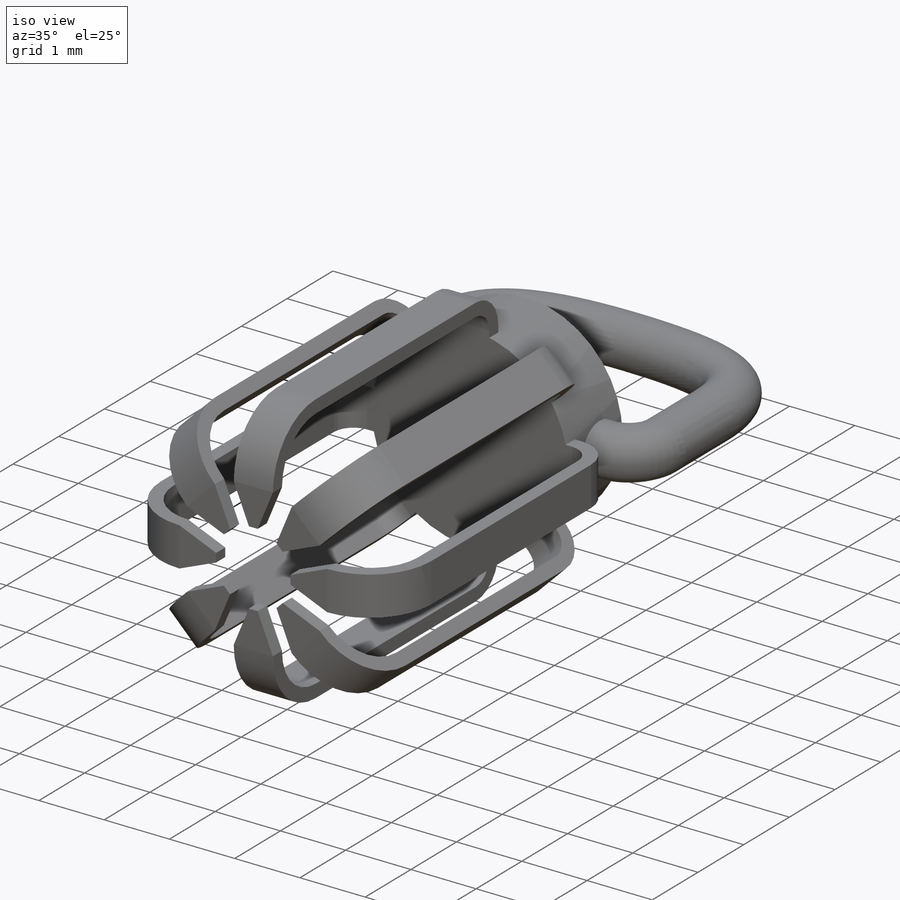
[diagram: iso view]
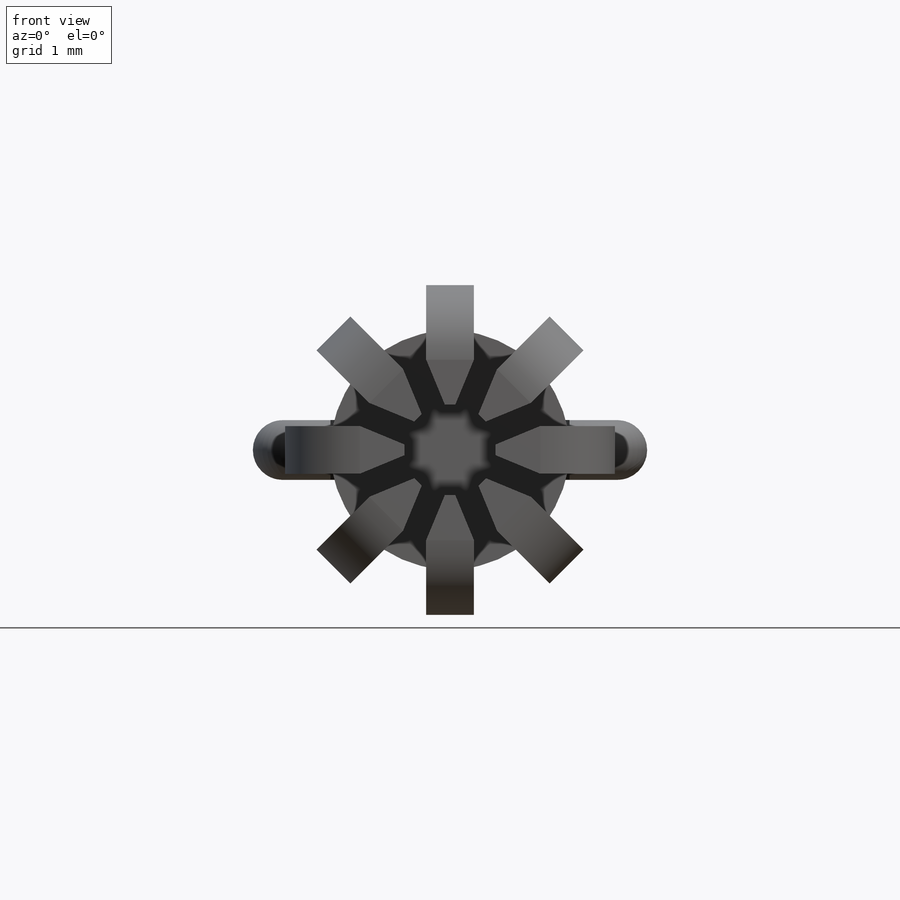
[diagram: front view]
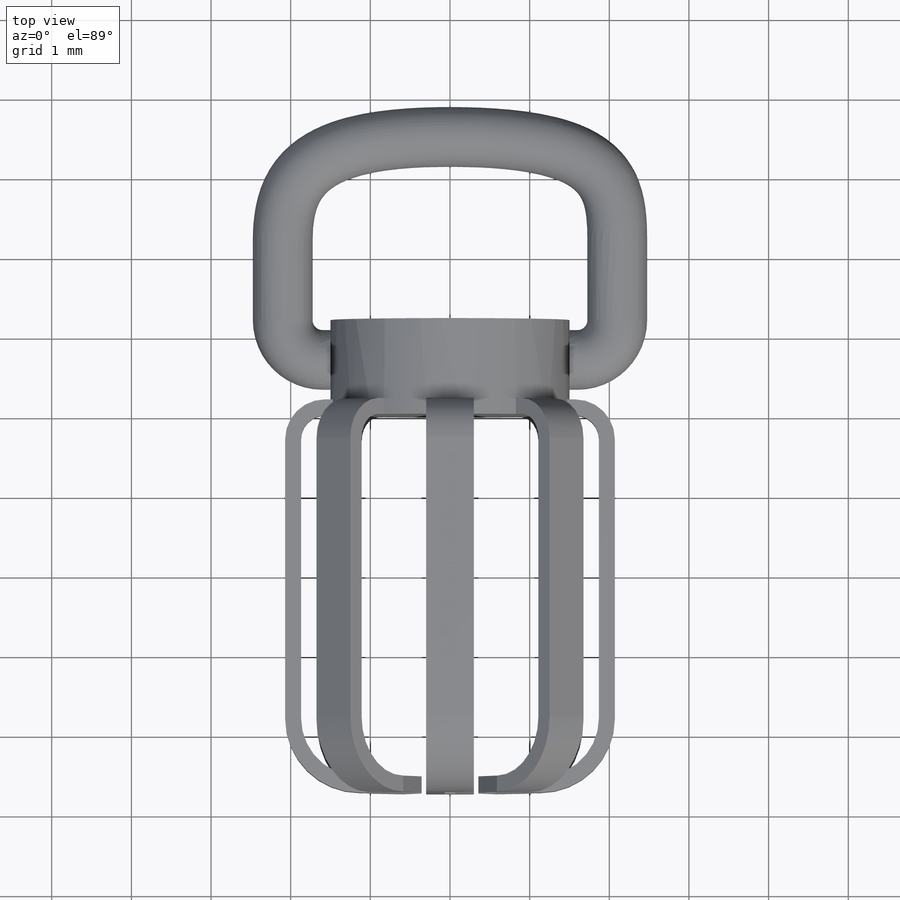
[diagram: top view]
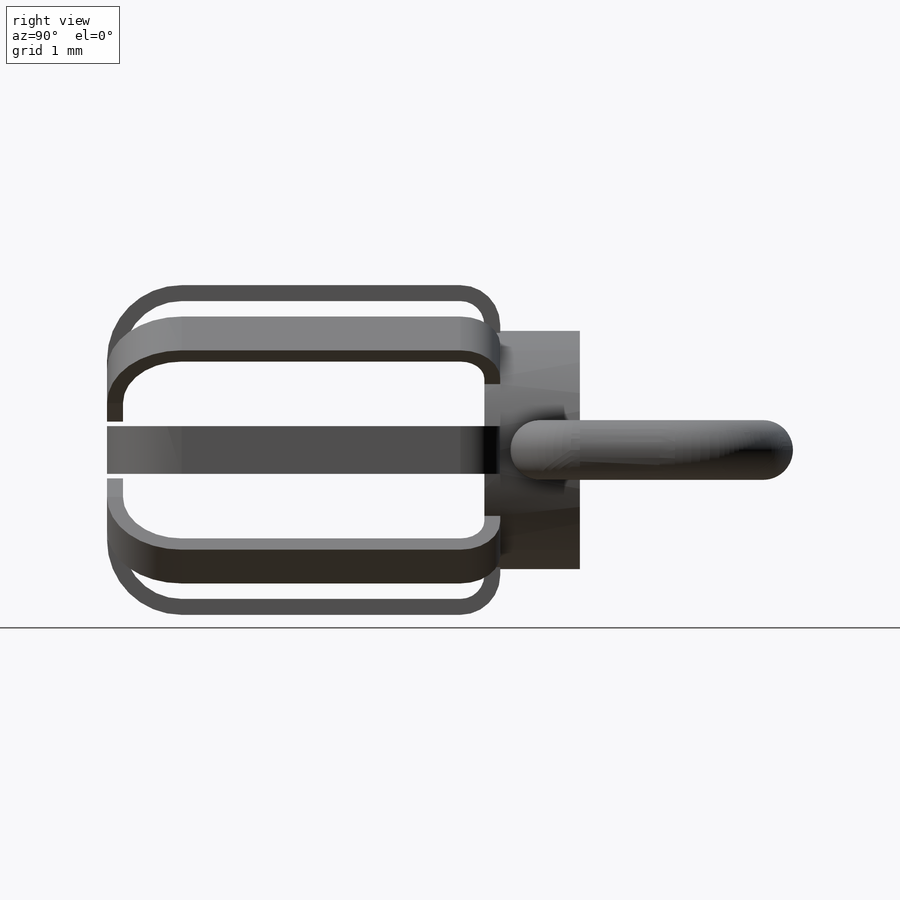
[diagram: right view]
SOLIDWORKS PART (.sldprt)
format: sldprt  version: not decoded by parser v0  size: 1,033,216 bytes
history: native  units: mm
features: sketch x21, sheet_metal_op x17, plane x2, material x1, extrude x1, sweep x1 + 17 further entries (+11 scaffold rows collapsed)
feature tree (71):
  scaffold x11  (default folders/planes/origin — collapsed)
  material  "Material <sin especificar>"
  sketch  "Croquis2"  dims[c1.D4=3.0mm c1.D3=3.0mm c1.D2=1.5mm c1.D1=~109.68146mm c2.D1=45.0deg c2.D2=~94.536201mm c3.D2=45.0deg c3.D3=~58.197241mm c3.D4=0.3mm c3.D5=0.3mm c3.D6=0.3mm c3.D7=0.3mm c3.D8=0.3mm c3.D9=0.3mm c3.D10=0.5mm c3.D11=0.5mm c3.D12=1.75mm c3.D13=1.75mm c3.D14=1.75mm c3.D15=1.75mm c3.D16=1.75mm c3.D17=1.75mm c3.D18=1.75mm c3.D19=1.75mm c3.D20=0.3mm c3.D21=0.5mm c4.D10=0.3mm c4.D11=0.6mm c4.D21=0.6mm c4.D22=0.6mm c4.D8=0.3mm c4.D1=0.6mm c4.D3=0.6mm c4.D4=0.6mm c4.D5=0.6mm c4.D6=0.1mm c5.D3=0.1mm c6.D3=45.0deg c6.D4=0.1mm c7.D4=45.0deg]
  sheet_metal_op  "Chapa metálica1"
  sheet_metal_op  "Brida base1"
  sketch  "Croquis93"
  sketch  "Croquis97"
  sketch  "Croquis99"
  sketch  "Croquis101"
  sketch  "Croquis103"
  sketch  "Croquis105"
  sketch  "Croquis107"
  sketch  "Croquis109"  dims[D1=0.3mm D4=90.0deg D5=1.0 D8=0.1mm D9=0.1mm]
  sheet_metal_op  "Pliegue de arista20"
  sheet_metal_op  "Pliegue de arista21"
  sheet_metal_op  "Pliegue de arista22"
  sheet_metal_op  "Pliegue de arista23"
  sheet_metal_op  "Pliegue de arista24"
  sheet_metal_op  "Pliegue de arista25"
  sheet_metal_op  "Pliegue de arista26"  Brida de arista11=0
  sketch  "Croquis136"
  sketch  "Croquis137"
  sketch  "Croquis138"
  sketch  "Croquis139"
  sketch  "Croquis140"
  sketch  "Croquis141"
  sketch  "Croquis142"
  sketch  "Croquis143"
  sheet_metal_op  "Pliegue de arista27"
  sheet_metal_op  "Pliegue de arista28"
  sheet_metal_op  "Pliegue de arista29"
  sheet_metal_op  "Pliegue de arista30"
  sheet_metal_op  "Pliegue de arista31"
  sheet_metal_op  "Pliegue de arista32"
  sheet_metal_op  "Pliegue de arista33"
  sheet_metal_op  "Pliegue de arista34"
  plane  "Plano3"
  sketch  "Croquis144"
  extrude  "Saliente-Extruir1"  Depth=1mm
  sketch  "Croquis145"  dims[D6=0.5mm D1=1.5mm D2=0.6mm D3=0.6mm D4=1.5mm D5=1.5mm D7=3.5mm D8=2.5mm]
  plane  "Plano4"
  sketch  "Croquis146"  dims[D1=0.75mm]
  sweep  "Barrer1"
  "Chapa desplegada1"
  sketch  "Líneas de pliegue1"
  "Transformación de croquis1"
  "Aplanar-<Pliegue de arista20>1"
  "Aplanar-<Pliegue de arista21>1"
  "Aplanar-<Pliegue de arista22>1"
  "Aplanar-<Pliegue de arista23>1"
  "Aplanar-<Pliegue de arista24>1"
  "Aplanar-<Pliegue de arista25>1"
  "Aplanar-<Pliegue de arista26>1"
  "Aplanar-<Pliegue de arista27>1"
  "Aplanar-<Pliegue de arista28>1"
  "Aplanar-<Pliegue de arista29>1"
  "Aplanar-<Pliegue de arista30>1"
  "Aplanar-<Pliegue de arista31>1"
  "Aplanar-<Pliegue de arista32>1"
  "Aplanar-<Pliegue de arista33>1"
  "Aplanar-<Pliegue de arista34>1"
decode coverage: 6 of 40 modeling features carry decoded parameters; 17 rows unclassified (native names shown)
note: ~ marks probable driven/reference dimensions
note: suppression state not decoded; provenance and decode notes live in map.json
